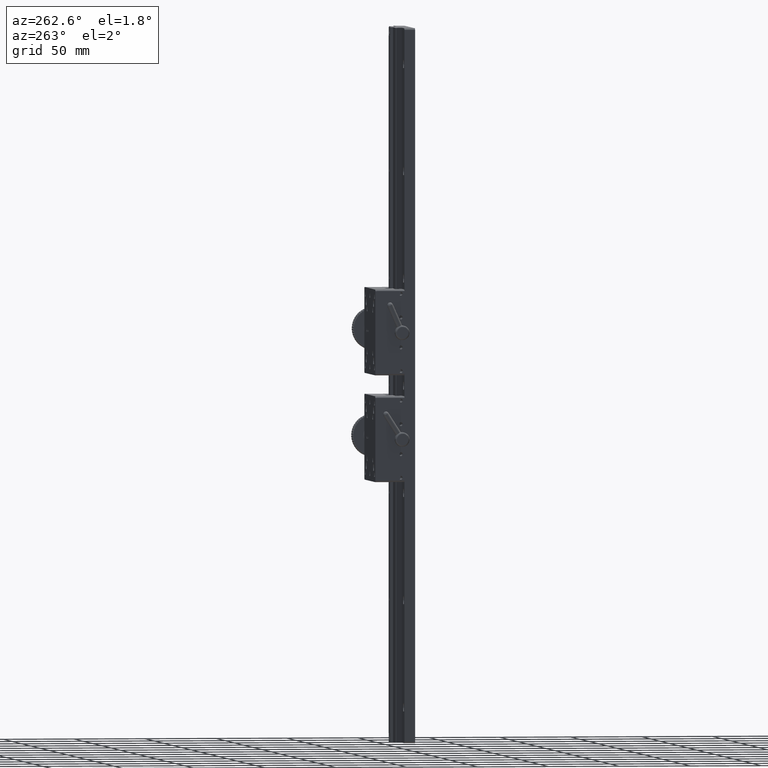
[diagram: clean part render]
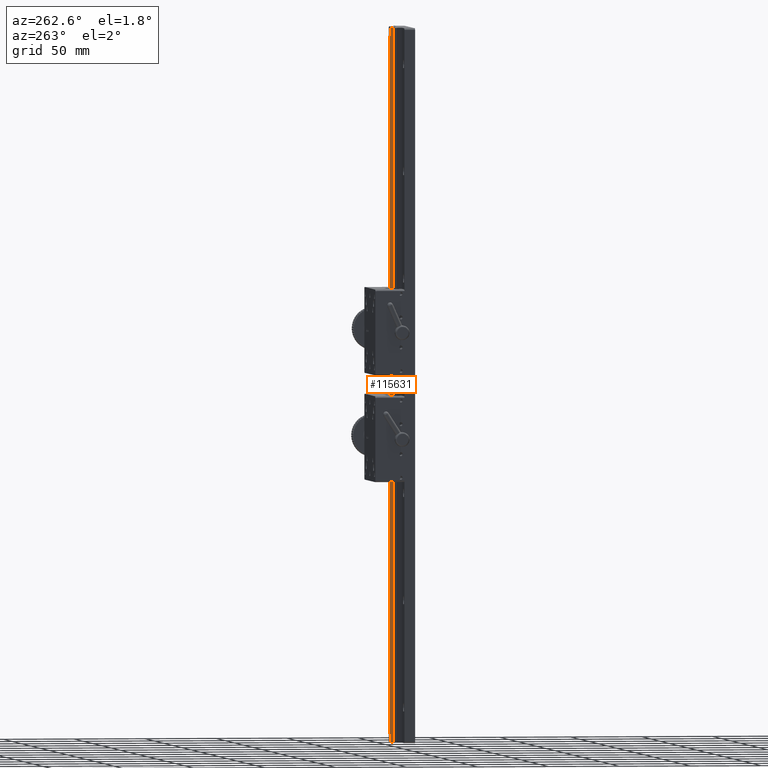
[diagram: same view with one face highlighted and labeled with its STEP entity id]
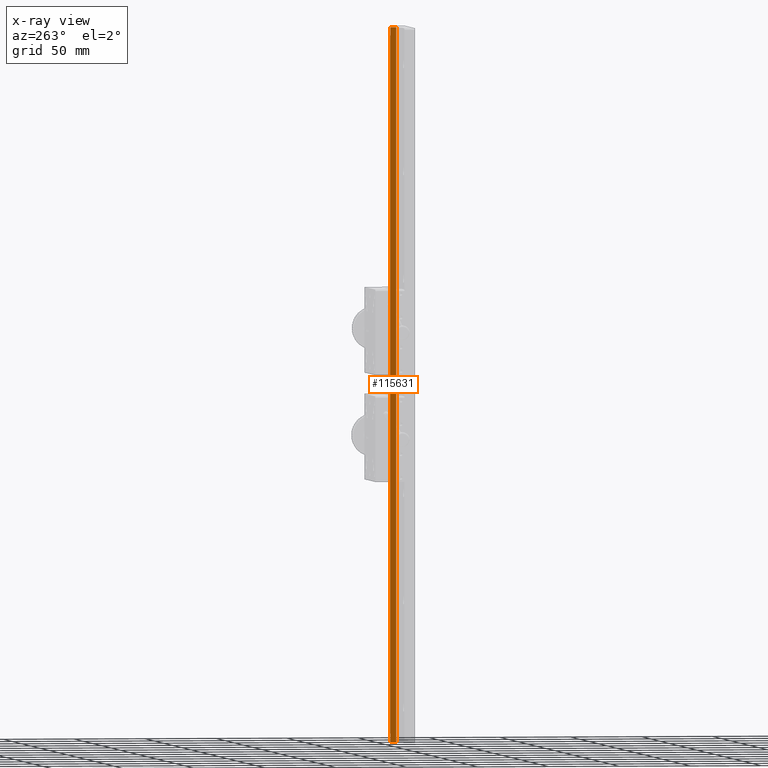
[diagram: x-ray of the same camera — body ghosted, the highlighted face saturated]
A machine part, auxiliary view. The second image highlights one B-rep face of the part: STEP entity #115631.
The next image is the same camera in x-ray: the body ghosted, the highlighted face saturated — about 0% of this face is hidden behind the body in this view.
In plain terms, the highlighted planar face has unit normal (1, 0, -0).
Its self-contained STEP definition (entity closure, byte-faithful):
#207 = VECTOR ( 'NONE', #418, 1000.000000000000000 ) ;
#418 = DIRECTION ( 'NONE',  ( 0.000000000000000000, 1.000000000000000000, 0.000000000000000000 ) ) ;
#2066 = CARTESIAN_POINT ( 'NONE',  ( 60.50156960994805644, 71.37772800986743960, 19.82318078334709099 ) ) ;
#3744 = LINE ( 'NONE', #82503, #30526 ) ;
#6228 = EDGE_CURVE ( 'NONE', #64596, #36701, #71037, .T. ) ;
#6355 = LINE ( 'NONE', #24719, #153235 ) ;
#7615 = CARTESIAN_POINT ( 'NONE',  ( 60.50156960994935673, 71.37772800986743960, 513.8231807833470839 ) ) ;
#7940 = EDGE_CURVE ( 'NONE', #51030, #167087, #6355, .T. ) ;
#12826 = LINE ( 'NONE', #120264, #36950 ) ;
#14074 = LINE ( 'NONE', #180914, #92316 ) ;
#15915 = CARTESIAN_POINT ( 'NONE',  ( 60.50156960994761590, 71.30272800986739412, 13.82318078334709988 ) ) ;
#17101 = ORIENTED_EDGE ( 'NONE', *, *, #54365, .T. ) ;
#17814 = DIRECTION ( 'NONE',  ( -0.000000000000000000, -1.000000000000000000, -0.000000000000000000 ) ) ;
#18802 = CARTESIAN_POINT ( 'NONE',  ( 60.50156960994934252, 71.30272800986743675, 507.8231807833470839 ) ) ;
#22320 = VERTEX_POINT ( 'NONE', #57749 ) ;
#24719 = CARTESIAN_POINT ( 'NONE',  ( 60.50156960994935673, 71.30272800986739412, 513.8231807833470839 ) ) ;
#28872 = ORIENTED_EDGE ( 'NONE', *, *, #117021, .T. ) ;
#30405 = DIRECTION ( 'NONE',  ( -3.491481338843133355E-15, 0.000000000000000000, -1.000000000000000000 ) ) ;
#30526 = VECTOR ( 'NONE', #65158, 1000.000000000000000 ) ;
#36701 = VERTEX_POINT ( 'NONE', #200074 ) ;
#36950 = VECTOR ( 'NONE', #101884, 1000.000000000000000 ) ;
#40745 = DIRECTION ( 'NONE',  ( -0.000000000000000000, -1.000000000000000000, -0.000000000000000000 ) ) ;
#41943 = VECTOR ( 'NONE', #181502, 1000.000000000000000 ) ;
#51030 = VERTEX_POINT ( 'NONE', #15915 ) ;
#53737 = ORIENTED_EDGE ( 'NONE', *, *, #174333, .F. ) ;
#54365 = EDGE_CURVE ( 'NONE', #101083, #22320, #108756, .T. ) ;
#57749 = CARTESIAN_POINT ( 'NONE',  ( 60.50156960994892330, 67.00272800986743960, 513.8231807833470839 ) ) ;
#64596 = VERTEX_POINT ( 'NONE', #2066 ) ;
#65158 = DIRECTION ( 'NONE',  ( 3.491481338843133355E-15, -0.000000000000000000, 1.000000000000000000 ) ) ;
#66355 = EDGE_LOOP ( 'NONE', ( #139537, #28872, #124671, #141126, #117946, #53737, #17101, #111641 ) ) ;
#71037 = LINE ( 'NONE', #7615, #41943 ) ;
#72468 = CARTESIAN_POINT ( 'NONE',  ( 60.50156960994935673, 71.30272800986743675, 513.8231807833470839 ) ) ;
#76176 = LINE ( 'NONE', #93508, #207 ) ;
#82503 = CARTESIAN_POINT ( 'NONE',  ( 60.50156960994935673, 71.30272800986743675, 513.8231807833470839 ) ) ;
#92316 = VECTOR ( 'NONE', #40745, 1000.000000000000000 ) ;
#93508 = CARTESIAN_POINT ( 'NONE',  ( 60.50156960994760880, 67.00272800986743960, 13.82318078334709988 ) ) ;
#100846 = VECTOR ( 'NONE', #154833, 1000.000000000000000 ) ;
#101083 = VERTEX_POINT ( 'NONE', #134592 ) ;
#101582 = EDGE_CURVE ( 'NONE', #152997, #22320, #190673, .T. ) ;
#101884 = DIRECTION ( 'NONE',  ( 0.000000000000000000, 1.000000000000000000, 0.000000000000000000 ) ) ;
#108756 = LINE ( 'NONE', #155835, #100846 ) ;
#111641 = ORIENTED_EDGE ( 'NONE', *, *, #101582, .F. ) ;
#115631 = ADVANCED_FACE ( 'NONE', ( #126540 ), #170612, .F. ) ;
#117021 = EDGE_CURVE ( 'NONE', #147951, #36701, #12826, .T. ) ;
#117946 = ORIENTED_EDGE ( 'NONE', *, *, #7940, .F. ) ;
#119376 = EDGE_CURVE ( 'NONE', #147951, #152997, #3744, .T. ) ;
#120264 = CARTESIAN_POINT ( 'NONE',  ( 60.50156960994934252, 71.30272800986743675, 507.8231807833470839 ) ) ;
#124671 = ORIENTED_EDGE ( 'NONE', *, *, #6228, .F. ) ;
#126540 = FACE_OUTER_BOUND ( 'NONE', #66355, .T. ) ;
#127539 = CARTESIAN_POINT ( 'NONE',  ( 60.50156960994935673, 67.00272800986743960, 513.8231807833470839 ) ) ;
#134592 = CARTESIAN_POINT ( 'NONE',  ( 60.50156960994760880, 67.00272800986743960, 13.82318078334709988 ) ) ;
#139537 = ORIENTED_EDGE ( 'NONE', *, *, #119376, .F. ) ;
#140623 = CARTESIAN_POINT ( 'NONE',  ( 60.50156960994935673, 67.00272800986743960, 513.8231807833470839 ) ) ;
#141126 = ORIENTED_EDGE ( 'NONE', *, *, #152197, .T. ) ;
#147951 = VERTEX_POINT ( 'NONE', #18802 ) ;
#149553 = DIRECTION ( 'NONE',  ( 3.491481338843133355E-15, -0.000000000000000000, 1.000000000000000000 ) ) ;
#151199 = AXIS2_PLACEMENT_3D ( 'NONE', #127539, #188926, #30405 ) ;
#152197 = EDGE_CURVE ( 'NONE', #64596, #167087, #14074, .T. ) ;
#152997 = VERTEX_POINT ( 'NONE', #72468 ) ;
#153235 = VECTOR ( 'NONE', #149553, 1000.000000000000000 ) ;
#154833 = DIRECTION ( 'NONE',  ( 0.000000000000000000, -0.000000000000000000, 1.000000000000000000 ) ) ;
#155835 = CARTESIAN_POINT ( 'NONE',  ( 60.50156960994760880, 67.00272800986743960, 513.8231807833470839 ) ) ;
#167087 = VERTEX_POINT ( 'NONE', #195995 ) ;
#170612 = PLANE ( 'NONE',  #151199 ) ;
#174333 = EDGE_CURVE ( 'NONE', #101083, #51030, #76176, .T. ) ;
#180914 = CARTESIAN_POINT ( 'NONE',  ( 60.50156960994763011, 71.30272800986739412, 19.82318078334707678 ) ) ;
#181417 = VECTOR ( 'NONE', #17814, 1000.000000000000000 ) ;
#181502 = DIRECTION ( 'NONE',  ( 3.491481338843133355E-15, -0.000000000000000000, 1.000000000000000000 ) ) ;
#188926 = DIRECTION ( 'NONE',  ( 1.000000000000000000, 0.000000000000000000, -3.491481338843133355E-15 ) ) ;
#190673 = LINE ( 'NONE', #140623, #181417 ) ;
#195995 = CARTESIAN_POINT ( 'NONE',  ( 60.50156960994763011, 71.30272800986739412, 19.82318078334707678 ) ) ;
#200074 = CARTESIAN_POINT ( 'NONE',  ( 60.50156960994934252, 71.37772800986743960, 507.8231807833470839 ) ) ;